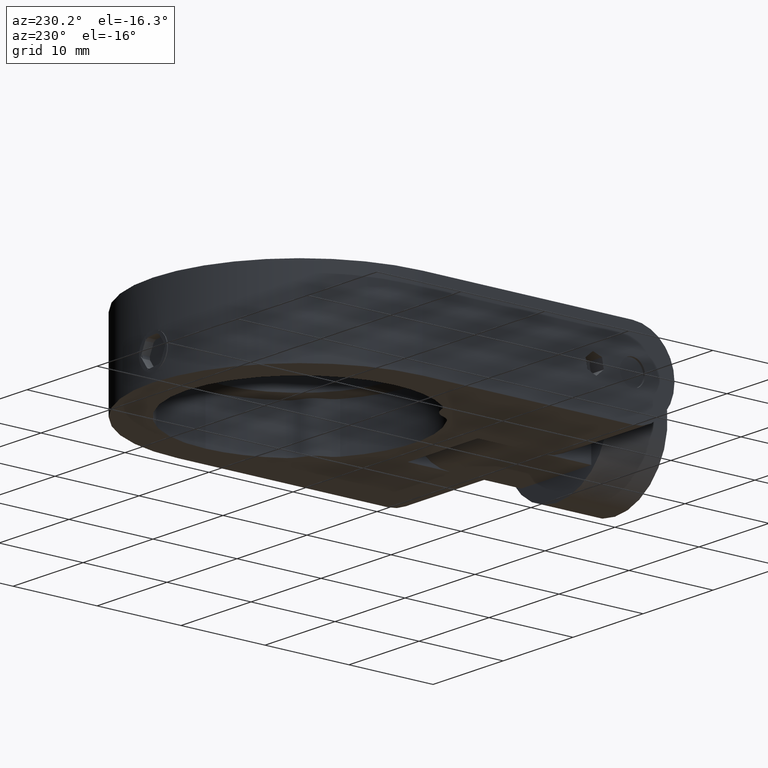
[diagram: clean part render]
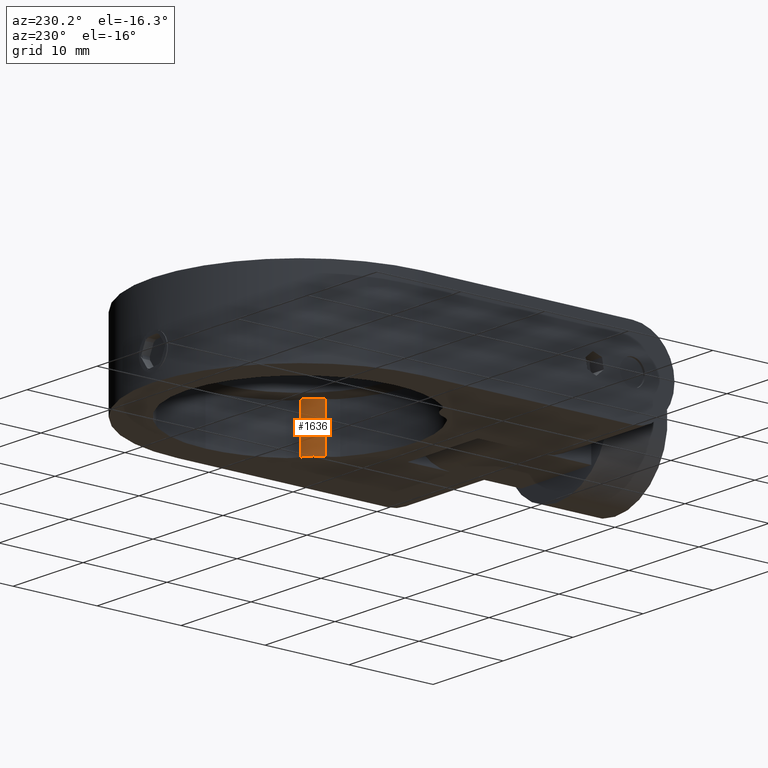
[diagram: same view with one face highlighted and labeled with its STEP entity id]
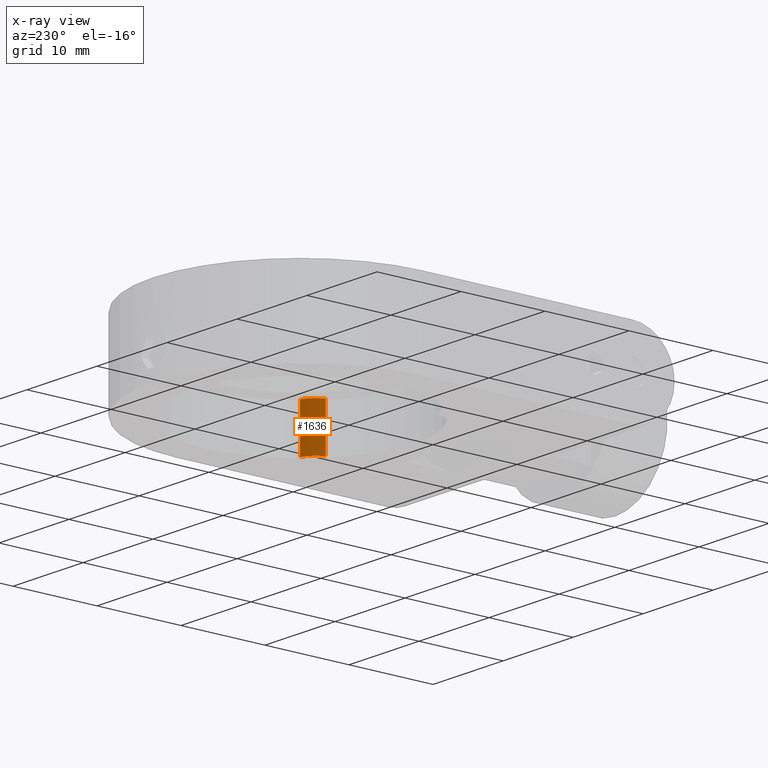
[diagram: x-ray of the same camera — body ghosted, the highlighted face saturated]
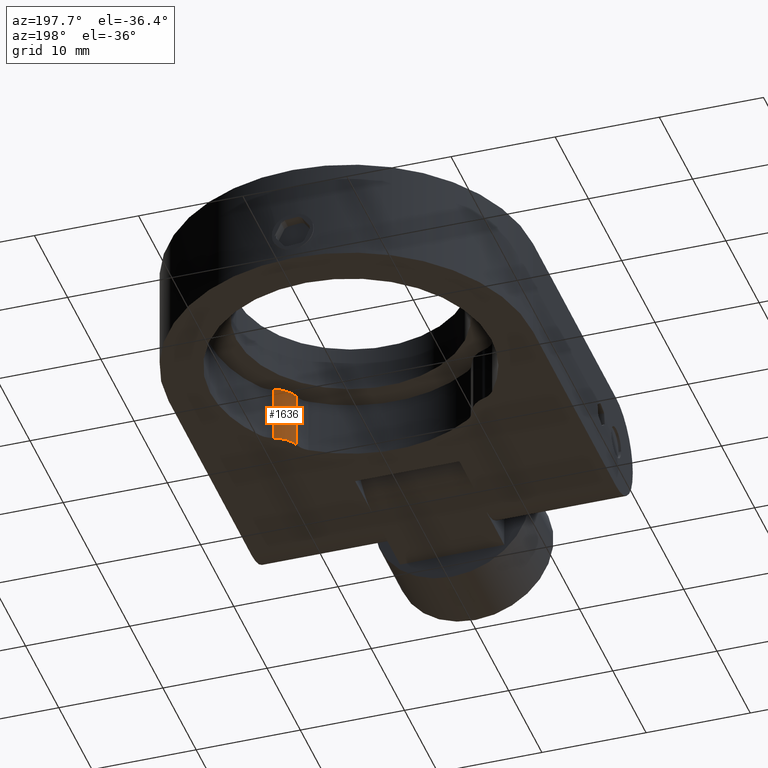
[diagram: same view with one face highlighted and labeled with its STEP entity id]
A machine part, auxiliary view. The second image highlights one B-rep face of the part: STEP entity #1636.
The next image is the same camera in x-ray: the body ghosted, the highlighted face saturated — about 0% of this face is hidden behind the body in this view.
A second angle (auxiliary view) of the same face is appended — the face is thin or edge-on in the first view.
In plain terms, the highlighted cylindrical surface (edge-blend (fillet) strip) has radius 2.5 mm, axis along (-0, -0, -1).
Its self-contained STEP definition (entity closure, byte-faithful):
#85 = AXIS2_PLACEMENT_3D ( 'NONE', #1072, #3146, #2798 ) ;
#160 = ORIENTED_EDGE ( 'NONE', *, *, #2795, .T. ) ;
#185 = DIRECTION ( 'NONE',  ( -1.000000000000000000, -1.387778780781445500E-015, 8.673617379884034200E-017 ) ) ;
#472 = LINE ( 'NONE', #1524, #1351 ) ;
#573 = VECTOR ( 'NONE', #3784, 1000.000000000000000 ) ;
#878 = AXIS2_PLACEMENT_3D ( 'NONE', #2767, #2201, #3388 ) ;
#898 = CIRCLE ( 'NONE', #85, 2.500000000000000400 ) ;
#1018 = CARTESIAN_POINT ( 'NONE',  ( 8.408207200546307500, 27.42754876433242500, -4.999999999999982200 ) ) ;
#1072 = CARTESIAN_POINT ( 'NONE',  ( 10.79999999999999700, 26.70000000000010600, -4.999999999999982200 ) ) ;
#1253 = CARTESIAN_POINT ( 'NONE',  ( 10.07245123566768200, 29.09179279945379200, 0.4999999999927432500 ) ) ;
#1351 = VECTOR ( 'NONE', #3642, 1000.000000000000000 ) ;
#1416 = CARTESIAN_POINT ( 'NONE',  ( 10.07245123572053700, 29.09179279945379200, 500005.0000000000600 ) ) ;
#1434 = DIRECTION ( 'NONE',  ( 1.057139645054936500E-016, 1.718301073974566900E-032, 1.000000000000000000 ) ) ;
#1524 = CARTESIAN_POINT ( 'NONE',  ( 8.408207200599166600, 27.42754876433242500, 500005.0000000000600 ) ) ;
#1636 = ADVANCED_FACE ( 'NONE', ( #3691 ), #2126, .T. ) ;
#1835 = ORIENTED_EDGE ( 'NONE', *, *, #2524, .F. ) ;
#2063 = EDGE_LOOP ( 'NONE', ( #3633, #160, #1835, #3807 ) ) ;
#2126 = CYLINDRICAL_SURFACE ( 'NONE', #878, 2.500000000000000400 ) ;
#2201 = DIRECTION ( 'NONE',  ( -1.057139645054936600E-016, -1.718301073974566900E-032, -1.000000000000000000 ) ) ;
#2359 = EDGE_CURVE ( 'NONE', #2516, #2727, #472, .T. ) ;
#2368 = LINE ( 'NONE', #1416, #573 ) ;
#2467 = VERTEX_POINT ( 'NONE', #1253 ) ;
#2516 = VERTEX_POINT ( 'NONE', #1018 ) ;
#2524 = EDGE_CURVE ( 'NONE', #2516, #3047, #898, .T. ) ;
#2596 = CARTESIAN_POINT ( 'NONE',  ( 8.408207200546309300, 27.42754876433242500, 0.4999999999927432500 ) ) ;
#2612 = CIRCLE ( 'NONE', #2777, 2.500000000000000400 ) ;
#2727 = VERTEX_POINT ( 'NONE', #2596 ) ;
#2767 = CARTESIAN_POINT ( 'NONE',  ( 10.80000000005285600, 26.70000000000010600, 500005.0000000000600 ) ) ;
#2777 = AXIS2_PLACEMENT_3D ( 'NONE', #3199, #1434, #185 ) ;
#2795 = EDGE_CURVE ( 'NONE', #2467, #3047, #2368, .T. ) ;
#2798 = DIRECTION ( 'NONE',  ( -1.000000000000000000, 0.0000000000000000000, 0.0000000000000000000 ) ) ;
#2813 = CARTESIAN_POINT ( 'NONE',  ( 10.07245123566768000, 29.09179279945379200, -4.999999999999982200 ) ) ;
#3047 = VERTEX_POINT ( 'NONE', #2813 ) ;
#3146 = DIRECTION ( 'NONE',  ( -1.057139645054936500E-016, -1.718301073974566900E-032, -1.000000000000000000 ) ) ;
#3199 = CARTESIAN_POINT ( 'NONE',  ( 10.79999999999999900, 26.70000000000010600, 0.4999999999927432500 ) ) ;
#3388 = DIRECTION ( 'NONE',  ( -1.000000000000000000, 0.0000000000000000000, 0.0000000000000000000 ) ) ;
#3633 = ORIENTED_EDGE ( 'NONE', *, *, #3794, .F. ) ;
#3642 = DIRECTION ( 'NONE',  ( 1.057139645054936600E-016, 1.718301073974566900E-032, 1.000000000000000000 ) ) ;
#3691 = FACE_OUTER_BOUND ( 'NONE', #2063, .T. ) ;
#3784 = DIRECTION ( 'NONE',  ( -1.057139645054936600E-016, -1.718301073974566900E-032, -1.000000000000000000 ) ) ;
#3794 = EDGE_CURVE ( 'NONE', #2467, #2727, #2612, .T. ) ;
#3807 = ORIENTED_EDGE ( 'NONE', *, *, #2359, .T. ) ;